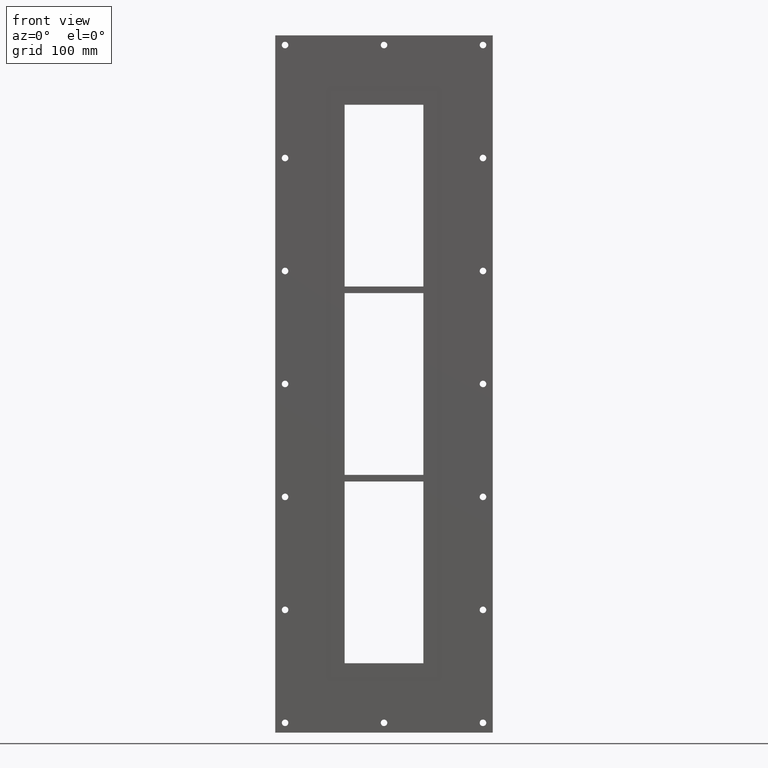
[diagram: clean part render]
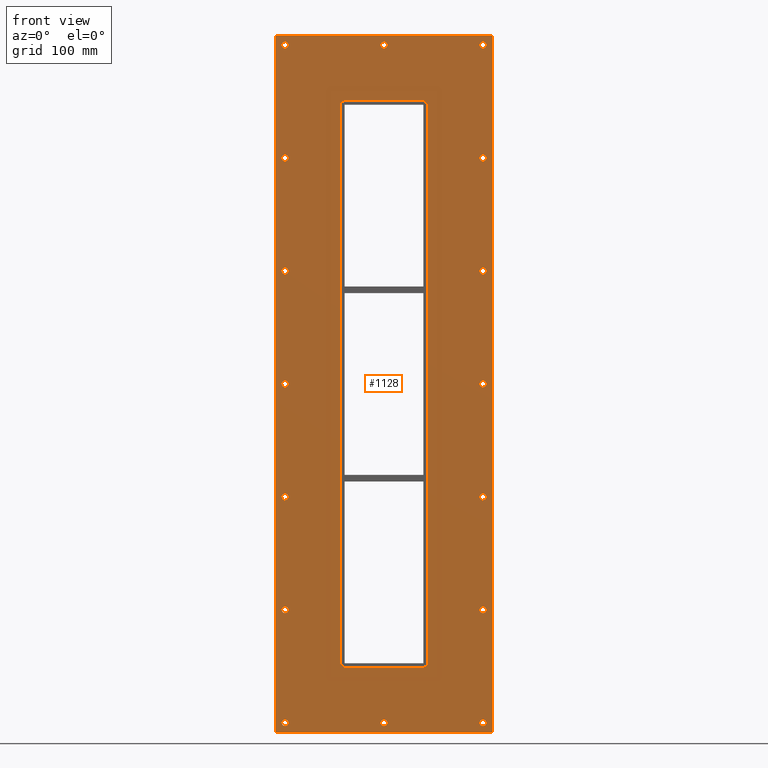
[diagram: same view with one face highlighted and labeled with its STEP entity id]
A machine part, front view. The second image highlights one B-rep face of the part: STEP entity #1128.
In plain terms, the highlighted planar face has unit normal (0, 1, 0).
Its self-contained STEP definition (entity closure, byte-faithful):
#84=CARTESIAN_POINT('',(-146.25000000000009,0.0,-518.0));
#85=VERTEX_POINT('',#84);
#86=CARTESIAN_POINT('',(-151.25000000000009,0.0,-518.0));
#87=DIRECTION('',(0.0,1.0,0.0));
#88=DIRECTION('',(1.0,0.0,0.0));
#89=AXIS2_PLACEMENT_3D('',#86,#87,#88);
#90=CIRCLE('',#89,5.0);
#91=EDGE_CURVE('',#85,#85,#90,.T.);
#112=CARTESIAN_POINT('',(156.34999999999997,0.0,-345.29999999999984));
#113=VERTEX_POINT('',#112);
#114=CARTESIAN_POINT('',(151.34999999999997,0.0,-345.29999999999984));
#115=DIRECTION('',(0.0,1.0,0.0));
#116=DIRECTION('',(1.0,0.0,0.0));
#117=AXIS2_PLACEMENT_3D('',#114,#115,#116);
#118=CIRCLE('',#117,5.0);
#119=EDGE_CURVE('',#113,#113,#118,.T.);
#140=CARTESIAN_POINT('',(-146.25000000000009,0.0,-345.29999999999984));
#141=VERTEX_POINT('',#140);
#142=CARTESIAN_POINT('',(-151.25000000000009,0.0,-345.29999999999984));
#143=DIRECTION('',(0.0,1.0,0.0));
#144=DIRECTION('',(1.0,0.0,0.0));
#145=AXIS2_PLACEMENT_3D('',#142,#143,#144);
#146=CIRCLE('',#145,5.0);
#147=EDGE_CURVE('',#141,#141,#146,.T.);
#168=CARTESIAN_POINT('',(156.34999999999997,0.0,-172.59999999999994));
#169=VERTEX_POINT('',#168);
#170=CARTESIAN_POINT('',(151.34999999999997,0.0,-172.59999999999994));
#171=DIRECTION('',(0.0,1.0,0.0));
#172=DIRECTION('',(1.0,0.0,0.0));
#173=AXIS2_PLACEMENT_3D('',#170,#171,#172);
#174=CIRCLE('',#173,5.0);
#175=EDGE_CURVE('',#169,#169,#174,.T.);
#196=CARTESIAN_POINT('',(-146.25000000000009,0.0,-172.59999999999994));
#197=VERTEX_POINT('',#196);
#198=CARTESIAN_POINT('',(-151.25000000000009,0.0,-172.59999999999994));
#199=DIRECTION('',(0.0,1.0,0.0));
#200=DIRECTION('',(1.0,0.0,0.0));
#201=AXIS2_PLACEMENT_3D('',#198,#199,#200);
#202=CIRCLE('',#201,5.0);
#203=EDGE_CURVE('',#197,#197,#202,.T.);
#224=CARTESIAN_POINT('',(156.34999999999997,0.0,0.100000000000016));
#225=VERTEX_POINT('',#224);
#226=CARTESIAN_POINT('',(151.34999999999997,0.0,0.100000000000016));
#227=DIRECTION('',(0.0,1.0,0.0));
#228=DIRECTION('',(1.0,0.0,0.0));
#229=AXIS2_PLACEMENT_3D('',#226,#227,#228);
#230=CIRCLE('',#229,5.0);
#231=EDGE_CURVE('',#225,#225,#230,.T.);
#252=CARTESIAN_POINT('',(-146.25000000000009,0.0,0.100000000000016));
#253=VERTEX_POINT('',#252);
#254=CARTESIAN_POINT('',(-151.25000000000009,0.0,0.100000000000016));
#255=DIRECTION('',(0.0,1.0,0.0));
#256=DIRECTION('',(1.0,0.0,0.0));
#257=AXIS2_PLACEMENT_3D('',#254,#255,#256);
#258=CIRCLE('',#257,5.0);
#259=EDGE_CURVE('',#253,#253,#258,.T.);
#280=CARTESIAN_POINT('',(156.34999999999997,0.0,172.80000000000013));
#281=VERTEX_POINT('',#280);
#282=CARTESIAN_POINT('',(151.34999999999997,0.0,172.80000000000013));
#283=DIRECTION('',(0.0,1.0,0.0));
#284=DIRECTION('',(1.0,0.0,0.0));
#285=AXIS2_PLACEMENT_3D('',#282,#283,#284);
#286=CIRCLE('',#285,5.0);
#287=EDGE_CURVE('',#281,#281,#286,.T.);
#308=CARTESIAN_POINT('',(-146.25000000000009,0.0,172.80000000000013));
#309=VERTEX_POINT('',#308);
#310=CARTESIAN_POINT('',(-151.25000000000009,0.0,172.80000000000013));
#311=DIRECTION('',(0.0,1.0,0.0));
#312=DIRECTION('',(1.0,0.0,0.0));
#313=AXIS2_PLACEMENT_3D('',#310,#311,#312);
#314=CIRCLE('',#313,5.0);
#315=EDGE_CURVE('',#309,#309,#314,.T.);
#336=CARTESIAN_POINT('',(156.34999999999997,0.0,345.50000000000011));
#337=VERTEX_POINT('',#336);
#338=CARTESIAN_POINT('',(151.34999999999997,0.0,345.50000000000011));
#339=DIRECTION('',(0.0,1.0,0.0));
#340=DIRECTION('',(1.0,0.0,0.0));
#341=AXIS2_PLACEMENT_3D('',#338,#339,#340);
#342=CIRCLE('',#341,5.0);
#343=EDGE_CURVE('',#337,#337,#342,.T.);
#364=CARTESIAN_POINT('',(-146.25000000000009,0.0,345.50000000000011));
#365=VERTEX_POINT('',#364);
#366=CARTESIAN_POINT('',(-151.25000000000009,0.0,345.50000000000011));
#367=DIRECTION('',(0.0,1.0,0.0));
#368=DIRECTION('',(1.0,0.0,0.0));
#369=AXIS2_PLACEMENT_3D('',#366,#367,#368);
#370=CIRCLE('',#369,5.0);
#371=EDGE_CURVE('',#365,#365,#370,.T.);
#392=CARTESIAN_POINT('',(5.049999999999937,0.0,518.20000000000005));
#393=VERTEX_POINT('',#392);
#394=CARTESIAN_POINT('',(0.049999999999937,0.0,518.20000000000005));
#395=DIRECTION('',(0.0,1.0,0.0));
#396=DIRECTION('',(1.0,0.0,0.0));
#397=AXIS2_PLACEMENT_3D('',#394,#395,#396);
#398=CIRCLE('',#397,5.0);
#399=EDGE_CURVE('',#393,#393,#398,.T.);
#420=CARTESIAN_POINT('',(5.049999999999937,0.0,-518.0));
#421=VERTEX_POINT('',#420);
#422=CARTESIAN_POINT('',(0.049999999999937,0.0,-518.0));
#423=DIRECTION('',(0.0,1.0,0.0));
#424=DIRECTION('',(1.0,0.0,0.0));
#425=AXIS2_PLACEMENT_3D('',#422,#423,#424);
#426=CIRCLE('',#425,5.0);
#427=EDGE_CURVE('',#421,#421,#426,.T.);
#448=CARTESIAN_POINT('',(156.34999999999997,0.0,-518.0));
#449=VERTEX_POINT('',#448);
#450=CARTESIAN_POINT('',(151.34999999999997,0.0,-518.0));
#451=DIRECTION('',(0.0,1.0,0.0));
#452=DIRECTION('',(1.0,0.0,0.0));
#453=AXIS2_PLACEMENT_3D('',#450,#451,#452);
#454=CIRCLE('',#453,5.0);
#455=EDGE_CURVE('',#449,#449,#454,.T.);
#476=CARTESIAN_POINT('',(-146.25000000000009,0.0,518.20000000000005));
#477=VERTEX_POINT('',#476);
#478=CARTESIAN_POINT('',(-151.25000000000009,0.0,518.20000000000005));
#479=DIRECTION('',(0.0,1.0,0.0));
#480=DIRECTION('',(1.0,0.0,0.0));
#481=AXIS2_PLACEMENT_3D('',#478,#479,#480);
#482=CIRCLE('',#481,5.0);
#483=EDGE_CURVE('',#477,#477,#482,.T.);
#504=CARTESIAN_POINT('',(156.34999999999997,0.0,518.20000000000005));
#505=VERTEX_POINT('',#504);
#506=CARTESIAN_POINT('',(151.34999999999997,0.0,518.20000000000005));
#507=DIRECTION('',(0.0,1.0,0.0));
#508=DIRECTION('',(1.0,0.0,0.0));
#509=AXIS2_PLACEMENT_3D('',#506,#507,#508);
#510=CIRCLE('',#509,5.0);
#511=EDGE_CURVE('',#505,#505,#510,.T.);
#971=CARTESIAN_POINT('',(-1.219380E-014,0.0,2.438759E-014));
#972=DIRECTION('',(0.0,1.0,0.0));
#973=DIRECTION('',(0.0,0.0,1.0));
#974=AXIS2_PLACEMENT_3D('',#971,#972,#973);
#975=PLANE('',#974);
#976=CARTESIAN_POINT('',(-166.25000000000003,0.0,533.0));
#977=VERTEX_POINT('',#976);
#978=CARTESIAN_POINT('',(166.25,0.0,533.0));
#979=VERTEX_POINT('',#978);
#980=CARTESIAN_POINT('',(-166.25000000000003,0.0,533.0));
#981=DIRECTION('',(1.0,0.0,0.0));
#982=VECTOR('',#981,332.5);
#983=LINE('',#980,#982);
#984=EDGE_CURVE('',#977,#979,#983,.T.);
#985=ORIENTED_EDGE('',*,*,#984,.F.);
#986=CARTESIAN_POINT('',(-166.25000000000003,0.0,-533.0));
#987=VERTEX_POINT('',#986);
#988=CARTESIAN_POINT('',(-166.25000000000003,0.0,-533.0));
#989=DIRECTION('',(0.0,0.0,1.0));
#990=VECTOR('',#989,1066.0);
#991=LINE('',#988,#990);
#992=EDGE_CURVE('',#987,#977,#991,.T.);
#993=ORIENTED_EDGE('',*,*,#992,.F.);
#994=CARTESIAN_POINT('',(166.25,0.0,-533.0));
#995=VERTEX_POINT('',#994);
#996=CARTESIAN_POINT('',(166.25,0.0,-533.0));
#997=DIRECTION('',(-1.0,0.0,0.0));
#998=VECTOR('',#997,332.5);
#999=LINE('',#996,#998);
#1000=EDGE_CURVE('',#995,#987,#999,.T.);
#1001=ORIENTED_EDGE('',*,*,#1000,.F.);
#1002=CARTESIAN_POINT('',(166.25,0.0,533.0));
#1003=DIRECTION('',(0.0,0.0,-1.0));
#1004=VECTOR('',#1003,1066.0);
#1005=LINE('',#1002,#1004);
#1006=EDGE_CURVE('',#979,#995,#1005,.T.);
#1007=ORIENTED_EDGE('',*,*,#1006,.F.);
#1008=EDGE_LOOP('',(#985,#993,#1001,#1007));
#1009=FACE_OUTER_BOUND('',#1008,.T.);
#1010=ORIENTED_EDGE('',*,*,#91,.T.);
#1011=EDGE_LOOP('',(#1010));
#1012=FACE_BOUND('',#1011,.T.);
#1013=ORIENTED_EDGE('',*,*,#119,.T.);
#1014=EDGE_LOOP('',(#1013));
#1015=FACE_BOUND('',#1014,.T.);
#1016=ORIENTED_EDGE('',*,*,#147,.T.);
#1017=EDGE_LOOP('',(#1016));
#1018=FACE_BOUND('',#1017,.T.);
#1019=ORIENTED_EDGE('',*,*,#175,.T.);
#1020=EDGE_LOOP('',(#1019));
#1021=FACE_BOUND('',#1020,.T.);
#1022=ORIENTED_EDGE('',*,*,#203,.T.);
#1023=EDGE_LOOP('',(#1022));
#1024=FACE_BOUND('',#1023,.T.);
#1025=ORIENTED_EDGE('',*,*,#231,.T.);
#1026=EDGE_LOOP('',(#1025));
#1027=FACE_BOUND('',#1026,.T.);
#1028=ORIENTED_EDGE('',*,*,#259,.T.);
#1029=EDGE_LOOP('',(#1028));
#1030=FACE_BOUND('',#1029,.T.);
#1031=ORIENTED_EDGE('',*,*,#287,.T.);
#1032=EDGE_LOOP('',(#1031));
#1033=FACE_BOUND('',#1032,.T.);
#1034=ORIENTED_EDGE('',*,*,#315,.T.);
#1035=EDGE_LOOP('',(#1034));
#1036=FACE_BOUND('',#1035,.T.);
#1037=ORIENTED_EDGE('',*,*,#343,.T.);
#1038=EDGE_LOOP('',(#1037));
#1039=FACE_BOUND('',#1038,.T.);
#1040=ORIENTED_EDGE('',*,*,#371,.T.);
#1041=EDGE_LOOP('',(#1040));
#1042=FACE_BOUND('',#1041,.T.);
#1043=ORIENTED_EDGE('',*,*,#399,.T.);
#1044=EDGE_LOOP('',(#1043));
#1045=FACE_BOUND('',#1044,.T.);
#1046=ORIENTED_EDGE('',*,*,#427,.T.);
#1047=EDGE_LOOP('',(#1046));
#1048=FACE_BOUND('',#1047,.T.);
#1049=ORIENTED_EDGE('',*,*,#455,.T.);
#1050=EDGE_LOOP('',(#1049));
#1051=FACE_BOUND('',#1050,.T.);
#1052=ORIENTED_EDGE('',*,*,#483,.T.);
#1053=EDGE_LOOP('',(#1052));
#1054=FACE_BOUND('',#1053,.T.);
#1055=ORIENTED_EDGE('',*,*,#511,.T.);
#1056=EDGE_LOOP('',(#1055));
#1057=FACE_BOUND('',#1056,.T.);
#1058=CARTESIAN_POINT('',(-66.25,0.0,-427.0));
#1059=VERTEX_POINT('',#1058);
#1060=CARTESIAN_POINT('',(-60.25,0.0,-433.0));
#1061=VERTEX_POINT('',#1060);
#1062=CARTESIAN_POINT('',(-60.25,0.0,-427.0));
#1063=DIRECTION('',(0.0,-1.0,0.0));
#1064=DIRECTION('',(-0.707106781186551,0.0,-0.707106781186544));
#1065=AXIS2_PLACEMENT_3D('',#1062,#1063,#1064);
#1066=CIRCLE('',#1065,6.0);
#1067=EDGE_CURVE('',#1059,#1061,#1066,.T.);
#1068=ORIENTED_EDGE('',*,*,#1067,.F.);
#1069=CARTESIAN_POINT('',(-66.25,0.0,427.0));
#1070=VERTEX_POINT('',#1069);
#1071=CARTESIAN_POINT('',(-66.25,0.0,427.0));
#1072=DIRECTION('',(0.0,0.0,-1.0));
#1073=VECTOR('',#1072,854.0);
#1074=LINE('',#1071,#1073);
#1075=EDGE_CURVE('',#1070,#1059,#1074,.T.);
#1076=ORIENTED_EDGE('',*,*,#1075,.F.);
#1077=CARTESIAN_POINT('',(-60.25,0.0,433.00000000000011));
#1078=VERTEX_POINT('',#1077);
#1079=CARTESIAN_POINT('',(-60.25,0.0,427.0));
#1080=DIRECTION('',(0.0,-1.0,0.0));
#1081=DIRECTION('',(-0.707106781186542,0.0,0.707106781186553));
#1082=AXIS2_PLACEMENT_3D('',#1079,#1080,#1081);
#1083=CIRCLE('',#1082,6.000000000000001);
#1084=EDGE_CURVE('',#1078,#1070,#1083,.T.);
#1085=ORIENTED_EDGE('',*,*,#1084,.F.);
#1086=CARTESIAN_POINT('',(60.25,0.0,433.00000000000011));
#1087=VERTEX_POINT('',#1086);
#1088=CARTESIAN_POINT('',(60.249999999999993,0.0,433.00000000000011));
#1089=DIRECTION('',(-1.0,0.0,0.0));
#1090=VECTOR('',#1089,120.5);
#1091=LINE('',#1088,#1090);
#1092=EDGE_CURVE('',#1087,#1078,#1091,.T.);
#1093=ORIENTED_EDGE('',*,*,#1092,.F.);
#1094=CARTESIAN_POINT('',(66.25,0.0,427.00000000000011));
#1095=VERTEX_POINT('',#1094);
#1096=CARTESIAN_POINT('',(60.25,0.0,427.00000000000011));
#1097=DIRECTION('',(0.0,-1.0,0.0));
#1098=DIRECTION('',(0.707106781186542,0.0,0.707106781186553));
#1099=AXIS2_PLACEMENT_3D('',#1096,#1097,#1098);
#1100=CIRCLE('',#1099,6.000000000000001);
#1101=EDGE_CURVE('',#1095,#1087,#1100,.T.);
#1102=ORIENTED_EDGE('',*,*,#1101,.F.);
#1103=CARTESIAN_POINT('',(66.25,0.0,-426.99999999999989));
#1104=VERTEX_POINT('',#1103);
#1105=CARTESIAN_POINT('',(66.25,0.0,-426.99999999999994));
#1106=DIRECTION('',(0.0,0.0,1.0));
#1107=VECTOR('',#1106,854.0);
#1108=LINE('',#1105,#1107);
#1109=EDGE_CURVE('',#1104,#1095,#1108,.T.);
#1110=ORIENTED_EDGE('',*,*,#1109,.F.);
#1111=CARTESIAN_POINT('',(60.25,0.0,-433.0));
#1112=VERTEX_POINT('',#1111);
#1113=CARTESIAN_POINT('',(60.25,0.0,-426.99999999999989));
#1114=DIRECTION('',(0.0,-1.0,0.0));
#1115=DIRECTION('',(0.707106781186542,0.0,-0.707106781186553));
#1116=AXIS2_PLACEMENT_3D('',#1113,#1114,#1115);
#1117=CIRCLE('',#1116,6.000000000000001);
#1118=EDGE_CURVE('',#1112,#1104,#1117,.T.);
#1119=ORIENTED_EDGE('',*,*,#1118,.F.);
#1120=CARTESIAN_POINT('',(-60.250000000000007,0.0,-433.0));
#1121=DIRECTION('',(1.0,0.0,0.0));
#1122=VECTOR('',#1121,120.5);
#1123=LINE('',#1120,#1122);
#1124=EDGE_CURVE('',#1061,#1112,#1123,.T.);
#1125=ORIENTED_EDGE('',*,*,#1124,.F.);
#1126=EDGE_LOOP('',(#1068,#1076,#1085,#1093,#1102,#1110,#1119,#1125));
#1127=FACE_BOUND('',#1126,.T.);
#1128=ADVANCED_FACE('',(#1009,#1012,#1015,#1018,#1021,#1024,#1027,#1030,#1033,#1036,#1039,#1042,#1045,#1048,#1051,#1054,#1057,#1127),#975,.F.);